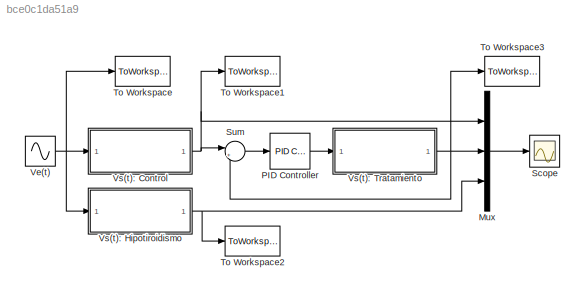
MODEL slx_bce0c1da51a9
KIND model
CONFIG AbsTol = auto
CONFIG EnableMultiTasking = off
CONFIG FixedStep = auto
CONFIG MaxStep = 1E-3
CONFIG MinStep = auto
CONFIG RelTol = 1E-3
CONFIG SampleTimeConstraint = Unconstrained
CONFIG SolverName = ode15s
CONFIG StartTime = 0.0
CONFIG StopTime = 30
BLOCK [Mux] Mux
  DisplayOption = bar
  Inputs = 3
BLOCK [Reference] PID Controller  REF=slpidlib/PID Controller
  LibrarySourceBlock = simulink/Continuous/PID Controller
  SourceBlock = slpidlib/PID Controller
  SourceType = PID 1dof
BLOCK [Scope] Scope
  Floating = off
  NumInputPorts = 1
  ScopeSpecificationString = Simulink.scopes.TimeScopeBlockCfg('CurrentConfiguration', extmgr.ConfigurationSet(extmgr.Configuration('Core','General UI',true,'FigureColor',[1 1 1]),extmgr.Configuration('Core','Source UI',true),extmgr.Configuration('Sources','WiredSimulink',true),extmgr.Configuration('Visuals','Time Domain',true,'SerializedDisplays',{struct('MinYLimReal','-1.08242','MaxYLimReal','1.09422','YLabelReal','','MinYL...<+1851ch>
BLOCK [Sum] Sum
  Inputs = |+-
BLOCK [ToWorkspace] To Workspace
  FixptAsFi = on
  MaxDataPoints = inf
  SampleTime = -1
  SaveFormat = Timeseries
  VariableName = Ve
BLOCK [ToWorkspace] To Workspace1
  FixptAsFi = on
  MaxDataPoints = inf
  SampleTime = -1
  SaveFormat = Timeseries
  VariableName = Vsx
BLOCK [ToWorkspace] To Workspace2
  FixptAsFi = on
  MaxDataPoints = inf
  SampleTime = -1
  SaveFormat = Timeseries
  VariableName = Vsy
BLOCK [ToWorkspace] To Workspace3
  FixptAsFi = on
  MaxDataPoints = inf
  SampleTime = -1
  SaveFormat = Timeseries
  VariableName = Vsz
BLOCK [Sin] Ve(t)
  Frequency = pi/2
  SampleTime = 0
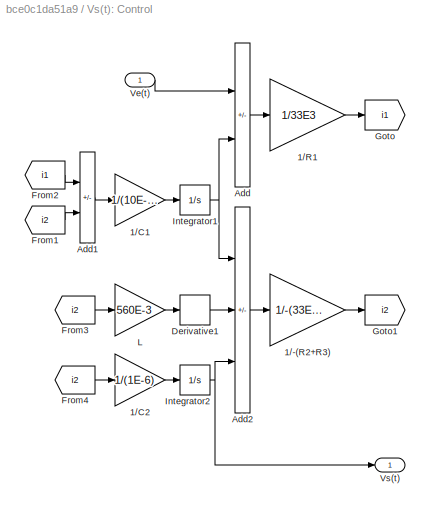
BLOCK [SubSystem] Vs(t): Control
BLOCK [Gain] Vs(t): Control/1//-(R2+R3)
  Gain = 1/-(33E3+10E3)
BLOCK [Gain] Vs(t): Control/1//C1
  Gain = 1/(10E-6)
BLOCK [Gain] Vs(t): Control/1//C2
  Gain = 1/(1E-6)
BLOCK [Gain] Vs(t): Control/1//R1
  Gain = 1/33E3
BLOCK [Sum] Vs(t): Control/Add
  IconShape = rectangular
  Inputs = +-
BLOCK [Sum] Vs(t): Control/Add1
  IconShape = rectangular
  Inputs = +-
BLOCK [Sum] Vs(t): Control/Add2
  IconShape = rectangular
  Inputs = -++
BLOCK [Derivative] Vs(t): Control/Derivative1
BLOCK [From] Vs(t): Control/From1
  GotoTag = i2
BLOCK [From] Vs(t): Control/From2
  GotoTag = i1
BLOCK [From] Vs(t): Control/From3
  GotoTag = i2
BLOCK [From] Vs(t): Control/From4
  GotoTag = i2
BLOCK [Goto] Vs(t): Control/Goto
  GotoTag = i1
BLOCK [Goto] Vs(t): Control/Goto1
  GotoTag = i2
BLOCK [Integrator] Vs(t): Control/Integrator1
BLOCK [Integrator] Vs(t): Control/Integrator2
BLOCK [Gain] Vs(t): Control/L
  Gain = 560E-3
BLOCK [Inport] Vs(t): Control/Ve(t)
BLOCK [Outport] Vs(t): Control/Vs(t)
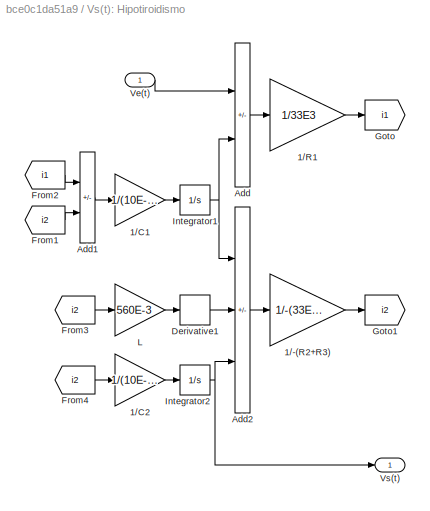
BLOCK [SubSystem] Vs(t): Hipotiroidismo
BLOCK [Gain] Vs(t): Hipotiroidismo/1//-(R2+R3)
  Gain = 1/-(33E3+33E3)
BLOCK [Gain] Vs(t): Hipotiroidismo/1//C1
  Gain = 1/(10E-6)
BLOCK [Gain] Vs(t): Hipotiroidismo/1//C2
  Gain = 1/(10E-6)
BLOCK [Gain] Vs(t): Hipotiroidismo/1//R1
  Gain = 1/33E3
BLOCK [Sum] Vs(t): Hipotiroidismo/Add
  IconShape = rectangular
  Inputs = +-
BLOCK [Sum] Vs(t): Hipotiroidismo/Add1
  IconShape = rectangular
  Inputs = +-
BLOCK [Sum] Vs(t): Hipotiroidismo/Add2
  IconShape = rectangular
  Inputs = -++
BLOCK [Derivative] Vs(t): Hipotiroidismo/Derivative1
BLOCK [From] Vs(t): Hipotiroidismo/From1
  GotoTag = i2
BLOCK [From] Vs(t): Hipotiroidismo/From2
  GotoTag = i1
BLOCK [From] Vs(t): Hipotiroidismo/From3
  GotoTag = i2
BLOCK [From] Vs(t): Hipotiroidismo/From4
  GotoTag = i2
BLOCK [Goto] Vs(t): Hipotiroidismo/Goto
  GotoTag = i1
BLOCK [Goto] Vs(t): Hipotiroidismo/Goto1
  GotoTag = i2
BLOCK [Integrator] Vs(t): Hipotiroidismo/Integrator1
BLOCK [Integrator] Vs(t): Hipotiroidismo/Integrator2
BLOCK [Gain] Vs(t): Hipotiroidismo/L
  Gain = 560E-3
BLOCK [Inport] Vs(t): Hipotiroidismo/Ve(t)
BLOCK [Outport] Vs(t): Hipotiroidismo/Vs(t)
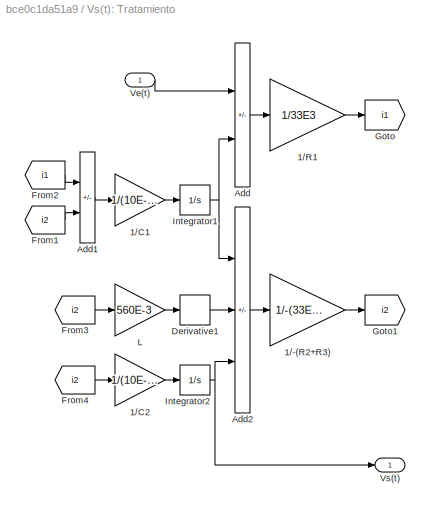
BLOCK [SubSystem] Vs(t): Tratamiento
BLOCK [Gain] Vs(t): Tratamiento/1//-(R2+R3)
  Gain = 1/-(33E3+33E3)
BLOCK [Gain] Vs(t): Tratamiento/1//C1
  Gain = 1/(10E-6)
BLOCK [Gain] Vs(t): Tratamiento/1//C2
  Gain = 1/(10E-6)
BLOCK [Gain] Vs(t): Tratamiento/1//R1
  Gain = 1/33E3
BLOCK [Sum] Vs(t): Tratamiento/Add
  IconShape = rectangular
  Inputs = +-
BLOCK [Sum] Vs(t): Tratamiento/Add1
  IconShape = rectangular
  Inputs = +-
BLOCK [Sum] Vs(t): Tratamiento/Add2
  IconShape = rectangular
  Inputs = -++
BLOCK [Derivative] Vs(t): Tratamiento/Derivative1
BLOCK [From] Vs(t): Tratamiento/From1
  GotoTag = i2
BLOCK [From] Vs(t): Tratamiento/From2
  GotoTag = i1
BLOCK [From] Vs(t): Tratamiento/From3
  GotoTag = i2
BLOCK [From] Vs(t): Tratamiento/From4
  GotoTag = i2
BLOCK [Goto] Vs(t): Tratamiento/Goto
  GotoTag = i1
BLOCK [Goto] Vs(t): Tratamiento/Goto1
  GotoTag = i2
BLOCK [Integrator] Vs(t): Tratamiento/Integrator1
BLOCK [Integrator] Vs(t): Tratamiento/Integrator2
BLOCK [Gain] Vs(t): Tratamiento/L
  Gain = 560E-3
BLOCK [Inport] Vs(t): Tratamiento/Ve(t)
BLOCK [Outport] Vs(t): Tratamiento/Vs(t)
LINE Mux:1 -> Scope:1
LINE PID Controller:1 -> Vs(t): Tratamiento:1
LINE Sum:1 -> PID Controller:1
NET Ve(t):1 -> To Workspace:1, Vs(t): Control:1, Vs(t): Hipotiroidismo:1
LINE Vs(t): Control/1//-(R2+R3):1 -> Vs(t): Control/Goto1:1
LINE Vs(t): Control/1//C1:1 -> Vs(t): Control/Integrator1:1
LINE Vs(t): Control/1//C2:1 -> Vs(t): Control/Integrator2:1
LINE Vs(t): Control/1//R1:1 -> Vs(t): Control/Goto:1
LINE Vs(t): Control/Add1:1 -> Vs(t): Control/1//C1:1
LINE Vs(t): Control/Add2:1 -> Vs(t): Control/1//-(R2+R3):1
LINE Vs(t): Control/Add:1 -> Vs(t): Control/1//R1:1
LINE Vs(t): Control/Derivative1:1 -> Vs(t): Control/Add2:2
LINE Vs(t): Control/From1:1 -> Vs(t): Control/Add1:2
LINE Vs(t): Control/From2:1 -> Vs(t): Control/Add1:1
LINE Vs(t): Control/From3:1 -> Vs(t): Control/L:1
LINE Vs(t): Control/From4:1 -> Vs(t): Control/1//C2:1
NET Vs(t): Control/Integrator1:1 -> Vs(t): Control/Add2:1, Vs(t): Control/Add:2
NET Vs(t): Control/Integrator2:1 -> Vs(t): Control/Add2:3, Vs(t): Control/Vs(t):1
LINE Vs(t): Control/L:1 -> Vs(t): Control/Derivative1:1
LINE Vs(t): Control/Ve(t):1 -> Vs(t): Control/Add:1
NET Vs(t): Control:1 -> Mux:1, Sum:1, To Workspace1:1
LINE Vs(t): Hipotiroidismo/1//-(R2+R3):1 -> Vs(t): Hipotiroidismo/Goto1:1
LINE Vs(t): Hipotiroidismo/1//C1:1 -> Vs(t): Hipotiroidismo/Integrator1:1
LINE Vs(t): Hipotiroidismo/1//C2:1 -> Vs(t): Hipotiroidismo/Integrator2:1
LINE Vs(t): Hipotiroidismo/1//R1:1 -> Vs(t): Hipotiroidismo/Goto:1
LINE Vs(t): Hipotiroidismo/Add1:1 -> Vs(t): Hipotiroidismo/1//C1:1
LINE Vs(t): Hipotiroidismo/Add2:1 -> Vs(t): Hipotiroidismo/1//-(R2+R3):1
LINE Vs(t): Hipotiroidismo/Add:1 -> Vs(t): Hipotiroidismo/1//R1:1
LINE Vs(t): Hipotiroidismo/Derivative1:1 -> Vs(t): Hipotiroidismo/Add2:2
LINE Vs(t): Hipotiroidismo/From1:1 -> Vs(t): Hipotiroidismo/Add1:2
LINE Vs(t): Hipotiroidismo/From2:1 -> Vs(t): Hipotiroidismo/Add1:1
LINE Vs(t): Hipotiroidismo/From3:1 -> Vs(t): Hipotiroidismo/L:1
LINE Vs(t): Hipotiroidismo/From4:1 -> Vs(t): Hipotiroidismo/1//C2:1
NET Vs(t): Hipotiroidismo/Integrator1:1 -> Vs(t): Hipotiroidismo/Add2:1, Vs(t): Hipotiroidismo/Add:2
NET Vs(t): Hipotiroidismo/Integrator2:1 -> Vs(t): Hipotiroidismo/Add2:3, Vs(t): Hipotiroidismo/Vs(t):1
LINE Vs(t): Hipotiroidismo/L:1 -> Vs(t): Hipotiroidismo/Derivative1:1
LINE Vs(t): Hipotiroidismo/Ve(t):1 -> Vs(t): Hipotiroidismo/Add:1
NET Vs(t): Hipotiroidismo:1 -> Mux:3, To Workspace2:1
LINE Vs(t): Tratamiento/1//-(R2+R3):1 -> Vs(t): Tratamiento/Goto1:1
LINE Vs(t): Tratamiento/1//C1:1 -> Vs(t): Tratamiento/Integrator1:1
LINE Vs(t): Tratamiento/1//C2:1 -> Vs(t): Tratamiento/Integrator2:1
LINE Vs(t): Tratamiento/1//R1:1 -> Vs(t): Tratamiento/Goto:1
LINE Vs(t): Tratamiento/Add1:1 -> Vs(t): Tratamiento/1//C1:1
LINE Vs(t): Tratamiento/Add2:1 -> Vs(t): Tratamiento/1//-(R2+R3):1
LINE Vs(t): Tratamiento/Add:1 -> Vs(t): Tratamiento/1//R1:1
LINE Vs(t): Tratamiento/Derivative1:1 -> Vs(t): Tratamiento/Add2:2
LINE Vs(t): Tratamiento/From1:1 -> Vs(t): Tratamiento/Add1:2
LINE Vs(t): Tratamiento/From2:1 -> Vs(t): Tratamiento/Add1:1
LINE Vs(t): Tratamiento/From3:1 -> Vs(t): Tratamiento/L:1
LINE Vs(t): Tratamiento/From4:1 -> Vs(t): Tratamiento/1//C2:1
NET Vs(t): Tratamiento/Integrator1:1 -> Vs(t): Tratamiento/Add2:1, Vs(t): Tratamiento/Add:2
NET Vs(t): Tratamiento/Integrator2:1 -> Vs(t): Tratamiento/Add2:3, Vs(t): Tratamiento/Vs(t):1
LINE Vs(t): Tratamiento/L:1 -> Vs(t): Tratamiento/Derivative1:1
LINE Vs(t): Tratamiento/Ve(t):1 -> Vs(t): Tratamiento/Add:1
NET Vs(t): Tratamiento:1 -> Mux:2, Sum:2, To Workspace3:1
note: NET lines group one-source signal fan-out (src -> all destinations, sorted); 1:1 wires keep LINE
